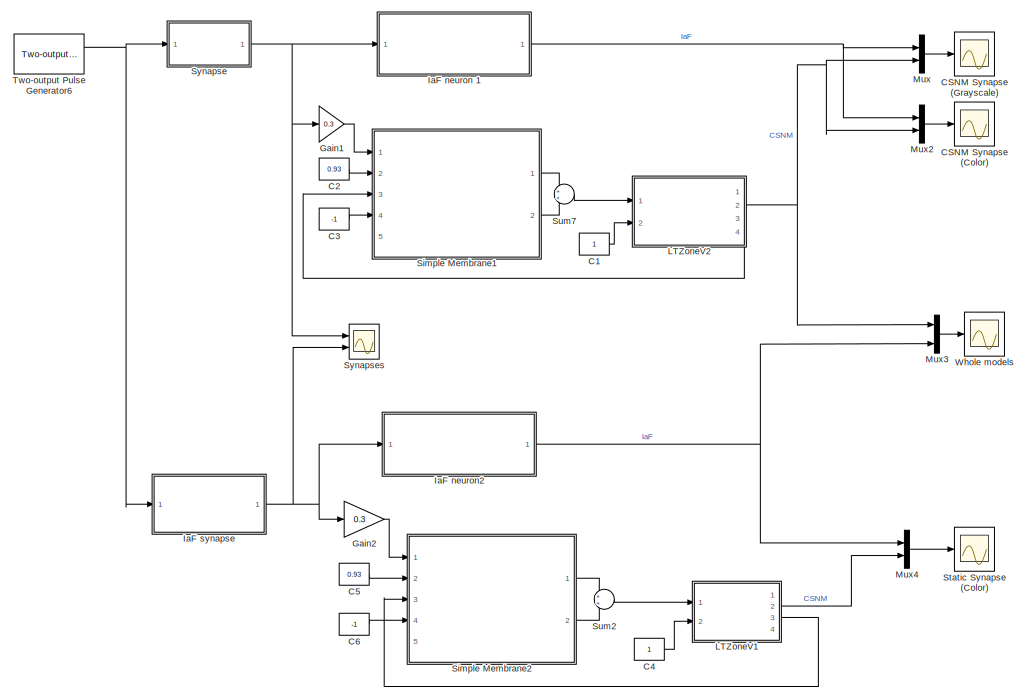
[diagram: root canvas - part 1/2, top right region]
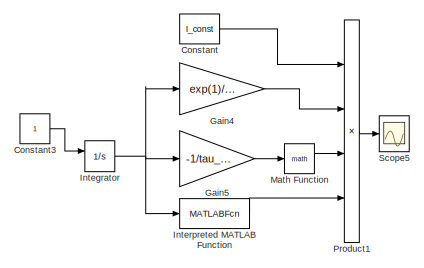
[diagram: root canvas - part 2/2, bottom left region]
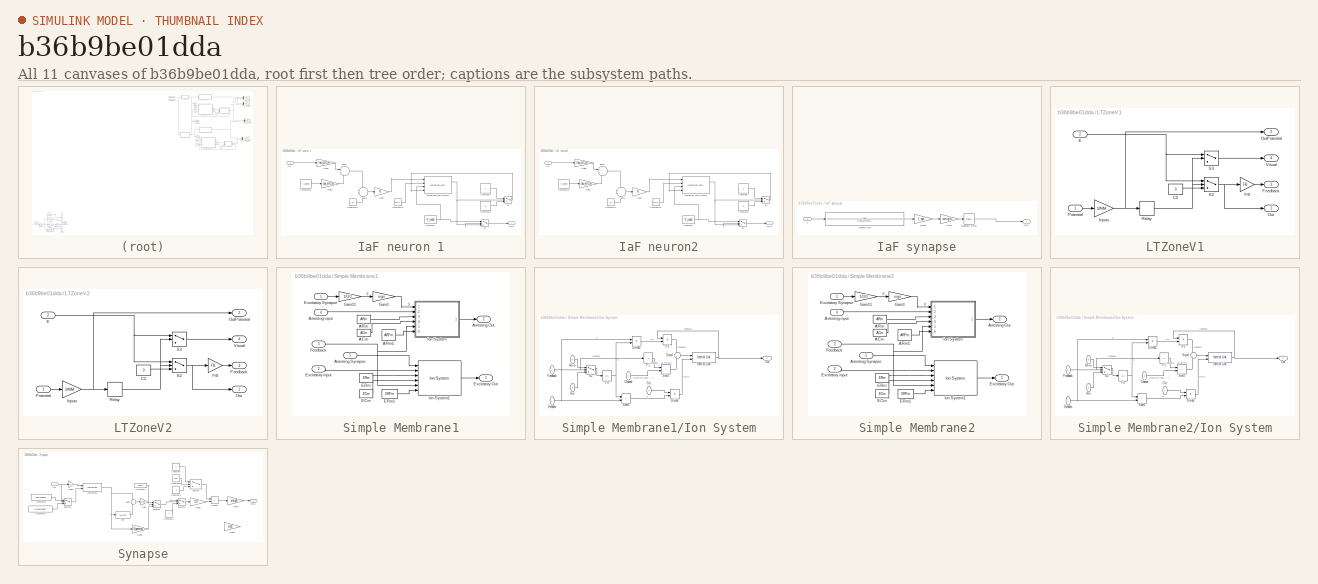
[diagram: thumbnail index - all 11 canvases of the model, root first then tree order]
MODEL slx_b36b9be01dda
KIND model
CONFIG AbsTol = auto
CONFIG EnableMultiTasking = on
CONFIG FixedStep = auto
CONFIG MaxStep = auto
CONFIG MinStep = auto
CONFIG RelTol = auto
CONFIG SampleTimeConstraint = Unconstrained
CONFIG SolverName = VariableStepAuto
CONFIG StartTime = 0.0
CONFIG StopTime = 0.4
BLOCK [Constant] C1
  NameLocation = top
BLOCK [Constant] C2
  Value = 0.93
BLOCK [Constant] C3
  Value = -1
BLOCK [Constant] C4
  NameLocation = top
BLOCK [Constant] C5
  Value = 0.93
BLOCK [Constant] C6
  Value = -1
BLOCK [Scope] CSNM Synapse (Color)
  Floating = off
  NumInputPorts = 1
  Ports = [1]
  ScopeSpecificationString = Simulink.scopes.TimeScopeBlockCfg('CurrentConfiguration', extmgr.ConfigurationSet(extmgr.Configuration('Core','General UI',true,'FigureColor',[1 1 1]),extmgr.Configuration('Core','Source UI',true),extmgr.Configuration('Sources','WiredSimulink',true,'DataLoggingVariableName','ScopeData2'),extmgr.Configuration('Visuals','Time Domain',true,'SerializedDisplays',{struct('MinYLimReal','-0.104','MaxYLimR...<+1925ch>
BLOCK [Scope] CSNM Synapse (Grayscale)
  Floating = off
  NumInputPorts = 1
  Ports = [1]
  ScopeSpecificationString = Simulink.scopes.TimeScopeBlockCfg('CurrentConfiguration', extmgr.ConfigurationSet(extmgr.Configuration('Core','General UI',true,'FigureColor',[1 1 1]),extmgr.Configuration('Core','Source UI',true),extmgr.Configuration('Sources','WiredSimulink',true,'DataLoggingVariableName','ScopeData1'),extmgr.Configuration('Visuals','Time Domain',true,'SerializedDisplays',{struct('MinYLimReal','-0.104','MaxYLimR...<+1903ch>
BLOCK [Constant] Constant
  Commented = on
  Value = I_const
BLOCK [Constant] Constant3
  Commented = on
BLOCK [Gain] Gain1
  Gain = 0.3
BLOCK [Gain] Gain2
  Gain = 0.3
BLOCK [Gain] Gain4
  Commented = on
  Gain = exp(1)/tau_syn
BLOCK [Gain] Gain5
  Commented = on
  Gain = -1/tau_syn
BLOCK [SubSystem] IaF neuron 1
  Ports = [1, 1]
  RequestExecContextInheritance = off
BLOCK [Constant] IaF neuron 1/Constant1
  Value = V_reset
BLOCK [Constant] IaF neuron 1/Constant10
  Value = tau_m
BLOCK [Constant] IaF neuron 1/Constant11
  Value = E_L
BLOCK [Constant] IaF neuron 1/Constant12
  Value = I_const
BLOCK [Constant] IaF neuron 1/Constant2
BLOCK [Constant] IaF neuron 1/Constant6
  Value = 0
BLOCK [Gain] IaF neuron 1/Gain1
BLOCK [Gain] IaF neuron 1/Gain2
  Gain = tau_m/Cm
BLOCK [Gain] IaF neuron 1/Gain3
  Gain = tau_m/Cm
BLOCK [Inport] IaF neuron 1/In1
BLOCK [Reference] IaF neuron 1/Inertial Link With Reset1  REF=NeuroModelerLibrary/Support/Inertial Link With Reset
  Ports = [4, 2]
  SourceBlock = NeuroModelerLibrary/Support/Inertial Link With Reset
  SourceType = SubSystem
BLOCK [Outport] IaF neuron 1/Out1
BLOCK [Switch] IaF neuron 1/S1
  Threshold = V_th
BLOCK [Switch] IaF neuron 1/S3
  Threshold = V_th
BLOCK [Sum] IaF neuron 1/Sum1
  Ports = [2, 1]
BLOCK [Sum] IaF neuron 1/Sum3
  Ports = [2, 1]
BLOCK [SubSystem] IaF neuron2
  Ports = [1, 1]
  RequestExecContextInheritance = off
BLOCK [Constant] IaF neuron2/Constant1
  Value = V_reset
BLOCK [Constant] IaF neuron2/Constant10
  Value = tau_m
BLOCK [Constant] IaF neuron2/Constant11
  Value = E_L
BLOCK [Constant] IaF neuron2/Constant12
  Value = I_const
BLOCK [Constant] IaF neuron2/Constant2
BLOCK [Constant] IaF neuron2/Constant6
  Value = 0
BLOCK [Gain] IaF neuron2/Gain1
BLOCK [Gain] IaF neuron2/Gain2
  Gain = tau_m/Cm
BLOCK [Gain] IaF neuron2/Gain3
  Gain = tau_m/Cm
BLOCK [Inport] IaF neuron2/In1
BLOCK [Reference] IaF neuron2/Inertial Link With Reset1  REF=NeuroModelerLibrary/Support/Inertial Link With Reset
  Ports = [4, 2]
  SourceBlock = NeuroModelerLibrary/Support/Inertial Link With Reset
  SourceType = SubSystem
BLOCK [Outport] IaF neuron2/Out1
BLOCK [Switch] IaF neuron2/S1
  Threshold = V_th
BLOCK [Switch] IaF neuron2/S3
  Threshold = V_th
BLOCK [Sum] IaF neuron2/Sum1
  Ports = [2, 1]
BLOCK [Sum] IaF neuron2/Sum3
  Ports = [2, 1]
BLOCK [SubSystem] IaF synapse
  Ports = [1, 1]
  RequestExecContextInheritance = off
BLOCK [Gain] IaF synapse/Gain
  Gain = weight
BLOCK [Gain] IaF synapse/Gain6
  Gain = I_syn
BLOCK [Outport] IaF synapse/Out1
BLOCK [TransferFcn] IaF synapse/Transfer Fcn
  Denominator = [(tau_syn*tau_syn)  (2*tau_syn)  1]
BLOCK [TransportDelay] IaF synapse/Transport Delay
  DelayTime = delay
  Ports = [1, 1]
BLOCK [Inport] IaF synapse/u
BLOCK [Integrator] Integrator
  Commented = on
  ExternalReset = falling
  Ports = [2, 1]
BLOCK [MATLABFcn] Interpreted MATLAB Function
  Commented = on
  MATLABFcn = heaviside(u)
  Output1D = off
  OutputSignalType = real
  Ports = [1, 1]
BLOCK [SubSystem] LTZoneV1
  Ports = [2, 4]
  RequestExecContextInheritance = off
BLOCK [Constant] LTZoneV1/C5
  Value = 0
BLOCK [Inport] LTZoneV1/E
  Port = 2
BLOCK [Gain] LTZoneV1/FB
  Gain = FB
  OutDataTypeStr = Inherit: Same as input
  ParamDataTypeStr = Inherit: Same as input
BLOCK [Outport] LTZoneV1/Feedback
  InitialOutput = 0
  Port = 3
  VectorParamsAs1DForOutWhenUnconnected = off
BLOCK [Gain] LTZoneV1/Inputs
  Gain = 1/NM
  OutDataTypeStr = Inherit: Same as input
  ParamDataTypeStr = Inherit: Same as input
BLOCK [Outport] LTZoneV1/Out
  InitialOutput = 0
  VectorParamsAs1DForOutWhenUnconnected = off
BLOCK [Outport] LTZoneV1/OutPotential
  InitialOutput = 0
  Port = 2
  VectorParamsAs1DForOutWhenUnconnected = off
BLOCK [Inport] LTZoneV1/Potential
BLOCK [Relay] LTZoneV1/Relay
  OffSwitchValue = switchOff
  OnSwitchValue = T
BLOCK [Switch] LTZoneV1/S2
  Threshold = 1
BLOCK [Switch] LTZoneV1/S3
  Threshold = 1
BLOCK [Outport] LTZoneV1/Visual
  InitialOutput = 0
  Port = 4
  VectorParamsAs1DForOutWhenUnconnected = off
BLOCK [SubSystem] LTZoneV2
  Ports = [2, 4]
  RequestExecContextInheritance = off
BLOCK [Constant] LTZoneV2/C5
  Value = 0
BLOCK [Inport] LTZoneV2/E
  Port = 2
BLOCK [Gain] LTZoneV2/FB
  Gain = FB
  OutDataTypeStr = Inherit: Same as input
  ParamDataTypeStr = Inherit: Same as input
BLOCK [Outport] LTZoneV2/Feedback
  InitialOutput = 0
  Port = 3
  VectorParamsAs1DForOutWhenUnconnected = off
BLOCK [Gain] LTZoneV2/Inputs
  Gain = 1/NM
  OutDataTypeStr = Inherit: Same as input
  ParamDataTypeStr = Inherit: Same as input
BLOCK [Outport] LTZoneV2/Out
  InitialOutput = 0
  VectorParamsAs1DForOutWhenUnconnected = off
BLOCK [Outport] LTZoneV2/OutPotential
  InitialOutput = 0
  Port = 2
  VectorParamsAs1DForOutWhenUnconnected = off
BLOCK [Inport] LTZoneV2/Potential
BLOCK [Relay] LTZoneV2/Relay
  OffSwitchValue = switchOff
  OnSwitchValue = T
BLOCK [Switch] LTZoneV2/S2
  Threshold = 1
BLOCK [Switch] LTZoneV2/S3
  Threshold = 1
BLOCK [Outport] LTZoneV2/Visual
  InitialOutput = 0
  Port = 4
  VectorParamsAs1DForOutWhenUnconnected = off
BLOCK [Math] Math Function
  Commented = on
  Ports = [1, 1]
BLOCK [Mux] Mux
  DisplayOption = bar
  Inputs = 2
  Ports = [2, 1]
BLOCK [Mux] Mux2
  DisplayOption = bar
  Inputs = 2
  Ports = [2, 1]
BLOCK [Mux] Mux3
  DisplayOption = bar
  Inputs = 3
  Ports = [3, 1]
BLOCK [Mux] Mux4
  DisplayOption = bar
  Inputs = 2
  Ports = [2, 1]
BLOCK [Product] Product1
  Commented = on
  Inputs = 4
  Ports = [4, 1]
BLOCK [Scope] Scope5
  Commented = on
  Floating = off
  NumInputPorts = 1
  Ports = [1]
  ScopeSpecificationString = Simulink.scopes.TimeScopeBlockCfg('CurrentConfiguration', extmgr.ConfigurationSet(extmgr.Configuration('Core','General UI',true),extmgr.Configuration('Core','Source UI',true),extmgr.Configuration('Sources','WiredSimulink',true,'DataLoggingVariableName','ScopeData1'),extmgr.Configuration('Visuals','Time Domain',true,'SerializedDisplays',{struct('MinYLimReal','-1.00000','MaxYLimReal','1.00000','YLab...<+1465ch>
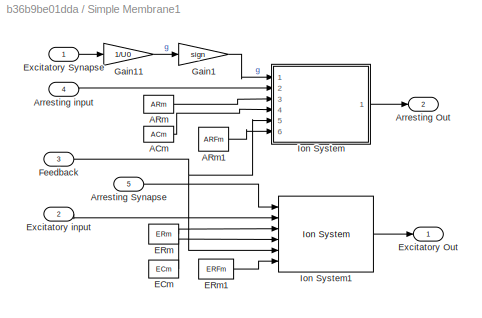
BLOCK [SubSystem] Simple Membrane1
  Ports = [5, 2]
  RequestExecContextInheritance = off
BLOCK [Constant] Simple Membrane1/ACm
  Value = ACm
BLOCK [Constant] Simple Membrane1/ARm
  Value = ARm
BLOCK [Constant] Simple Membrane1/ARm1
  Value = ARFm
BLOCK [Outport] Simple Membrane1/Arresting Out
  Port = 2
  VectorParamsAs1DForOutWhenUnconnected = off
BLOCK [Inport] Simple Membrane1/Arresting Synapse
  Port = 5
BLOCK [Inport] Simple Membrane1/Arresting input
  Port = 4
BLOCK [Constant] Simple Membrane1/ECm
  Value = ECm
BLOCK [Constant] Simple Membrane1/ERm
  Value = ERm
BLOCK [Constant] Simple Membrane1/ERm1
  Value = ERFm
BLOCK [Outport] Simple Membrane1/Excitatory Out
  VectorParamsAs1DForOutWhenUnconnected = off
BLOCK [Inport] Simple Membrane1/Excitatory Synapse
BLOCK [Inport] Simple Membrane1/Excitatory input
  Port = 2
BLOCK [Inport] Simple Membrane1/Feedback
  Port = 3
BLOCK [Gain] Simple Membrane1/Gain1
  Gain = sign
BLOCK [Gain] Simple Membrane1/Gain11
  Gain = 1/U0
BLOCK [SubSystem] Simple Membrane1/Ion System
  AncestorBlock = NeuroModelerLibrary/Neuron Elements/Ion System
  Ports = [6, 1]
  RequestExecContextInheritance = off
BLOCK [Inport] Simple Membrane1/Ion System/Channel
  NameLocation = top
  Port = 2
BLOCK [Inport] Simple Membrane1/Ion System/Cm
  NameLocation = top
  Port = 4
BLOCK [Product] Simple Membrane1/Ion System/Divide
  Inputs = */
  Ports = [2, 1]
BLOCK [Product] Simple Membrane1/Ion System/Divide1
  Inputs = */
  Ports = [2, 1]
BLOCK [Fcn] Simple Membrane1/Ion System/F1
  Expr = -u
BLOCK [Fcn] Simple Membrane1/Ion System/F4
  Expr = 1/u
BLOCK [Inport] Simple Membrane1/Ion System/Feedback
  NameLocation = top
  Port = 5
BLOCK [Reference] Simple Membrane1/Ion System/Inertial Link  REF=NeuroModelerLibrary/Support/Inertial Link
  Ports = [2, 1]
  SourceBlock = NeuroModelerLibrary/Support/Inertial Link
  SourceType = SubSystem
BLOCK [Outport] Simple Membrane1/Ion System/Out
  VectorParamsAs1DForOutWhenUnconnected = off
BLOCK [Product] Simple Membrane1/Ion System/P1
  InputSameDT = on
  OutDataTypeStr = Inherit: Same as first input
  Ports = [2, 1]
  RndMeth = Zero
  SaturateOnIntegerOverflow = on
BLOCK [Inport] Simple Membrane1/Ion System/RFm
  NameLocation = top
  Port = 6
BLOCK [Inport] Simple Membrane1/Ion System/Rm
  NameLocation = top
  Port = 3
BLOCK [Switch] Simple Membrane1/Ion System/S2
  Criteria = u2 > Threshold
BLOCK [Sum] Simple Membrane1/Ion System/Sum2
  IconShape = rectangular
  InputSameDT = on
  OutDataTypeStr = Inherit: Same as first input
  Ports = [2, 1]
  SaturateOnIntegerOverflow = on
BLOCK [Sum] Simple Membrane1/Ion System/Sum4
  InputSameDT = on
  Inputs = -+
  OutDataTypeStr = Inherit: Same as first input
  Ports = [2, 1]
  SaturateOnIntegerOverflow = on
BLOCK [Sum] Simple Membrane1/Ion System/Sum5
  IconShape = rectangular
  InputSameDT = on
  OutDataTypeStr = Inherit: Same as first input
  Ports = [2, 1]
  SaturateOnIntegerOverflow = on
BLOCK [Inport] Simple Membrane1/Ion System/Synapse
  NameLocation = top
BLOCK [Reference] Simple Membrane1/Ion System1  REF=NeuroModelerLibrary/Neuron Elements/Ion System
  Ports = [6, 1]
  SourceBlock = NeuroModelerLibrary/Neuron Elements/Ion System
  SourceType = SubSystem
BLOCK [SubSystem] Simple Membrane2
  Ports = [5, 2]
  RequestExecContextInheritance = off
BLOCK [Constant] Simple Membrane2/ACm
  Value = ACm
BLOCK [Constant] Simple Membrane2/ARm
  Value = ARm
BLOCK [Constant] Simple Membrane2/ARm1
  Value = ARFm
BLOCK [Outport] Simple Membrane2/Arresting Out
  Port = 2
  VectorParamsAs1DForOutWhenUnconnected = off
BLOCK [Inport] Simple Membrane2/Arresting Synapse
  Port = 5
BLOCK [Inport] Simple Membrane2/Arresting input
  Port = 4
BLOCK [Constant] Simple Membrane2/ECm
  Value = ECm
BLOCK [Constant] Simple Membrane2/ERm
  Value = ERm
BLOCK [Constant] Simple Membrane2/ERm1
  Value = ERFm
BLOCK [Outport] Simple Membrane2/Excitatory Out
  VectorParamsAs1DForOutWhenUnconnected = off
BLOCK [Inport] Simple Membrane2/Excitatory Synapse
BLOCK [Inport] Simple Membrane2/Excitatory input
  Port = 2
BLOCK [Inport] Simple Membrane2/Feedback
  Port = 3
BLOCK [Gain] Simple Membrane2/Gain1
  Gain = sign
BLOCK [Gain] Simple Membrane2/Gain11
  Gain = 1/U0
BLOCK [SubSystem] Simple Membrane2/Ion System
  AncestorBlock = NeuroModelerLibrary/Neuron Elements/Ion System
  Ports = [6, 1]
  RequestExecContextInheritance = off
BLOCK [Inport] Simple Membrane2/Ion System/Channel
  NameLocation = top
  Port = 2
BLOCK [Inport] Simple Membrane2/Ion System/Cm
  NameLocation = top
  Port = 4
BLOCK [Product] Simple Membrane2/Ion System/Divide
  Inputs = */
  Ports = [2, 1]
BLOCK [Product] Simple Membrane2/Ion System/Divide1
  Inputs = */
  Ports = [2, 1]
BLOCK [Fcn] Simple Membrane2/Ion System/F1
  Expr = -u
BLOCK [Fcn] Simple Membrane2/Ion System/F4
  Expr = 1/u
BLOCK [Inport] Simple Membrane2/Ion System/Feedback
  NameLocation = top
  Port = 5
BLOCK [Reference] Simple Membrane2/Ion System/Inertial Link  REF=NeuroModelerLibrary/Support/Inertial Link
  Ports = [2, 1]
  SourceBlock = NeuroModelerLibrary/Support/Inertial Link
  SourceType = SubSystem
BLOCK [Outport] Simple Membrane2/Ion System/Out
  VectorParamsAs1DForOutWhenUnconnected = off
BLOCK [Product] Simple Membrane2/Ion System/P1
  InputSameDT = on
  OutDataTypeStr = Inherit: Same as first input
  Ports = [2, 1]
  RndMeth = Zero
  SaturateOnIntegerOverflow = on
BLOCK [Inport] Simple Membrane2/Ion System/RFm
  NameLocation = top
  Port = 6
BLOCK [Inport] Simple Membrane2/Ion System/Rm
  NameLocation = top
  Port = 3
BLOCK [Switch] Simple Membrane2/Ion System/S2
  Criteria = u2 > Threshold
BLOCK [Sum] Simple Membrane2/Ion System/Sum2
  IconShape = rectangular
  InputSameDT = on
  OutDataTypeStr = Inherit: Same as first input
  Ports = [2, 1]
  SaturateOnIntegerOverflow = on
BLOCK [Sum] Simple Membrane2/Ion System/Sum4
  InputSameDT = on
  Inputs = -+
  OutDataTypeStr = Inherit: Same as first input
  Ports = [2, 1]
  SaturateOnIntegerOverflow = on
BLOCK [Sum] Simple Membrane2/Ion System/Sum5
  IconShape = rectangular
  InputSameDT = on
  OutDataTypeStr = Inherit: Same as first input
  Ports = [2, 1]
  SaturateOnIntegerOverflow = on
BLOCK [Inport] Simple Membrane2/Ion System/Synapse
  NameLocation = top
BLOCK [Reference] Simple Membrane2/Ion System1  REF=NeuroModelerLibrary/Neuron Elements/Ion System
  Ports = [6, 1]
  SourceBlock = NeuroModelerLibrary/Neuron Elements/Ion System
  SourceType = SubSystem
BLOCK [Scope] Static Synapse (Color)
  Floating = off
  NumInputPorts = 1
  Ports = [1]
  ScopeSpecificationString = Simulink.scopes.TimeScopeBlockCfg('CurrentConfiguration', extmgr.ConfigurationSet(extmgr.Configuration('Core','General UI',true,'FigureColor',[1 1 1]),extmgr.Configuration('Core','Source UI',true),extmgr.Configuration('Sources','WiredSimulink',true,'DataLoggingVariableName','ScopeData1'),extmgr.Configuration('Visuals','Time Domain',true,'SerializedDisplays',{struct('MinYLimReal','-0.104','MaxYLimR...<+1925ch>
BLOCK [Sum] Sum2
  InputSameDT = on
  OutDataTypeStr = Inherit: Same as first input
  Ports = [2, 1]
  SaturateOnIntegerOverflow = on
BLOCK [Sum] Sum7
  InputSameDT = on
  OutDataTypeStr = Inherit: Same as first input
  Ports = [2, 1]
  SaturateOnIntegerOverflow = on
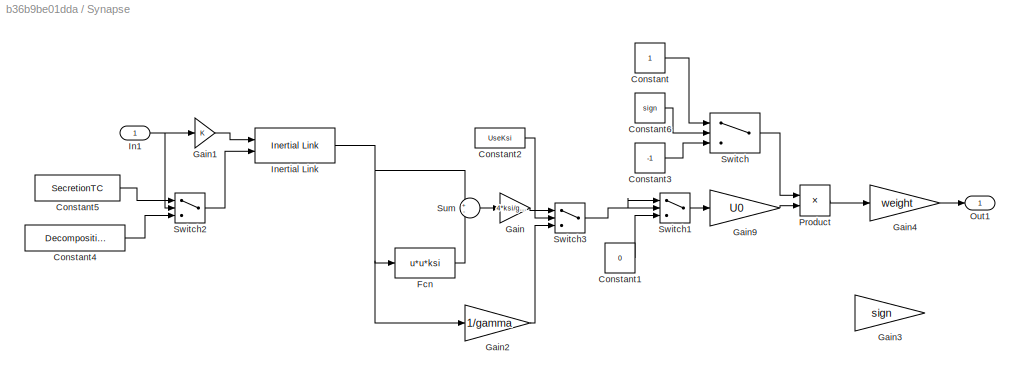
BLOCK [SubSystem] Synapse
  Ports = [1, 1]
  RequestExecContextInheritance = off
BLOCK [Constant] Synapse/Constant
BLOCK [Constant] Synapse/Constant1
  Value = 0
BLOCK [Constant] Synapse/Constant2
  Value = UseKsi
BLOCK [Constant] Synapse/Constant3
  Value = -1
BLOCK [Constant] Synapse/Constant4
  Value = DecompositionTC
BLOCK [Constant] Synapse/Constant5
  Value = SecretionTC
BLOCK [Constant] Synapse/Constant6
  Value = sign
BLOCK [Fcn] Synapse/Fcn
  Expr = u*u*ksi
BLOCK [Gain] Synapse/Gain
  Gain = 4*ksi/gamma
  OutDataTypeStr = Inherit: Same as input
  ParamDataTypeStr = Inherit: Same as input
  SaturateOnIntegerOverflow = on
BLOCK [Gain] Synapse/Gain1
  OutDataTypeStr = Inherit: Same as input
  ParamDataTypeStr = Inherit: Same as input
  SaturateOnIntegerOverflow = on
BLOCK [Gain] Synapse/Gain2
  Gain = 1/gamma
  OutDataTypeStr = Inherit: Same as input
  ParamDataTypeStr = Inherit: Same as input
  SaturateOnIntegerOverflow = on
BLOCK [Gain] Synapse/Gain3
  Commented = on
  Gain = sign
BLOCK [Gain] Synapse/Gain4
  Gain = weight
BLOCK [Gain] Synapse/Gain9
  Gain = U0
BLOCK [Inport] Synapse/In1
BLOCK [Reference] Synapse/Inertial Link  REF=NeuroModelerLibrary/Support/Inertial Link
  Ports = [2, 1]
  SourceBlock = NeuroModelerLibrary/Support/Inertial Link
  SourceType = SubSystem
BLOCK [Outport] Synapse/Out1
  VectorParamsAs1DForOutWhenUnconnected = off
BLOCK [Product] Synapse/Product
  Ports = [2, 1]
BLOCK [Sum] Synapse/Sum
  Inputs = +-
  Ports = [2, 1]
  SaturateOnIntegerOverflow = on
BLOCK [Switch] Synapse/Switch
  InputSameDT = off
  SaturateOnIntegerOverflow = off
  Threshold = 1
BLOCK [Switch] Synapse/Switch1
  InputSameDT = off
  SaturateOnIntegerOverflow = off
BLOCK [Switch] Synapse/Switch2
  InputSameDT = off
  SaturateOnIntegerOverflow = off
  Threshold = 1
BLOCK [Switch] Synapse/Switch3
  InputSameDT = off
  SaturateOnIntegerOverflow = off
  Threshold = 1
BLOCK [Scope] Synapses
  Floating = off
  NumInputPorts = 2
  Ports = [2]
  ScopeSpecificationString = Simulink.scopes.TimeScopeBlockCfg('CurrentConfiguration', extmgr.ConfigurationSet(extmgr.Configuration('Core','General UI',true),extmgr.Configuration('Core','Source UI',true),extmgr.Configuration('Sources','WiredSimulink',true,'DataLoggingVariableName','ScopeData1'),extmgr.Configuration('Visuals','Time Domain',true,'SerializedDisplays',{struct('MinYLimReal','-0.000000003','MaxYLimReal','0.00000002...<+1484ch>
BLOCK [Reference] Two-output Pulse Generator6  REF=NeuroModelerLibrary/Support/Two-output
Pulse Generator
  Ports = [0, 2]
  SourceBlock = NeuroModelerLibrary/Support/Two-output\nPulse Generator
BLOCK [Scope] Whole models
  Floating = off
  NumInputPorts = 1
  Ports = [1]
  ScopeSpecificationString = Simulink.scopes.TimeScopeBlockCfg('CurrentConfiguration', extmgr.ConfigurationSet(extmgr.Configuration('Core','General UI',true,'FigureColor',[1 1 1]),extmgr.Configuration('Core','Source UI',true),extmgr.Configuration('Sources','WiredSimulink',true,'DataLoggingVariableName','ScopeData1'),extmgr.Configuration('Visuals','Time Domain',true,'SerializedDisplays',{struct('MinYLimReal','-0.104','MaxYLimR...<+1897ch>
LINE C1:1 -> LTZoneV2:2
LINE C2:1 -> Simple Membrane1:2
LINE C3:1 -> Simple Membrane1:4
LINE C4:1 -> LTZoneV1:2
LINE C5:1 -> Simple Membrane2:2
LINE C6:1 -> Simple Membrane2:4
LINE Constant3:1 -> Integrator:1
LINE Constant:1 -> Product1:1
LINE Gain1:1 -> Simple Membrane1:1
LINE Gain2:1 -> Simple Membrane2:1
LINE Gain4:1 -> Product1:2
LINE Gain5:1 -> Math Function:1
LINE IaF neuron 1/Constant10:1 -> IaF neuron 1/Inertial Link With Reset1:2
LINE IaF neuron 1/Constant11:1 -> IaF neuron 1/Sum3:2
LINE IaF neuron 1/Constant12:1 -> IaF neuron 1/Gain2:1
NET IaF neuron 1/Constant1:1 -> IaF neuron 1/Inertial Link With Reset1:3, IaF neuron 1/S3:1
LINE IaF neuron 1/Constant2:1 -> IaF neuron 1/S1:1
LINE IaF neuron 1/Constant6:1 -> IaF neuron 1/S1:3
LINE IaF neuron 1/Gain1:1 -> IaF neuron 1/Inertial Link With Reset1:1
LINE IaF neuron 1/Gain2:1 -> IaF neuron 1/Sum1:2
LINE IaF neuron 1/Gain3:1 -> IaF neuron 1/Sum1:1
LINE IaF neuron 1/In1:1 -> IaF neuron 1/Gain3:1
NET IaF neuron 1/Inertial Link With Reset1:1 -> IaF neuron 1/S1:2, IaF neuron 1/S3:2, IaF neuron 1/S3:3
LINE IaF neuron 1/S1:1 -> IaF neuron 1/Inertial Link With Reset1:4
LINE IaF neuron 1/S3:1 -> IaF neuron 1/Out1:1
LINE IaF neuron 1/Sum1:1 -> IaF neuron 1/Sum3:1
LINE IaF neuron 1/Sum3:1 -> IaF neuron 1/Gain1:1
NET IaF neuron 1:1 -> Mux2:1, Mux:1
LINE IaF neuron2/Constant10:1 -> IaF neuron2/Inertial Link With Reset1:2
LINE IaF neuron2/Constant11:1 -> IaF neuron2/Sum3:2
LINE IaF neuron2/Constant12:1 -> IaF neuron2/Gain2:1
NET IaF neuron2/Constant1:1 -> IaF neuron2/Inertial Link With Reset1:3, IaF neuron2/S3:1
LINE IaF neuron2/Constant2:1 -> IaF neuron2/S1:1
LINE IaF neuron2/Constant6:1 -> IaF neuron2/S1:3
LINE IaF neuron2/Gain1:1 -> IaF neuron2/Inertial Link With Reset1:1
LINE IaF neuron2/Gain2:1 -> IaF neuron2/Sum1:2
LINE IaF neuron2/Gain3:1 -> IaF neuron2/Sum1:1
LINE IaF neuron2/In1:1 -> IaF neuron2/Gain3:1
NET IaF neuron2/Inertial Link With Reset1:1 -> IaF neuron2/S1:2, IaF neuron2/S3:2, IaF neuron2/S3:3
LINE IaF neuron2/S1:1 -> IaF neuron2/Inertial Link With Reset1:4
LINE IaF neuron2/S3:1 -> IaF neuron2/Out1:1
LINE IaF neuron2/Sum1:1 -> IaF neuron2/Sum3:1
LINE IaF neuron2/Sum3:1 -> IaF neuron2/Gain1:1
NET IaF neuron2:1 -> Mux3:3, Mux4:1
LINE IaF synapse/Gain6:1 -> IaF synapse/Gain:1
LINE IaF synapse/Gain:1 -> IaF synapse/Transport Delay:1
LINE IaF synapse/Transfer Fcn:1 -> IaF synapse/Gain6:1
LINE IaF synapse/Transport Delay:1 -> IaF synapse/Out1:1
LINE IaF synapse/u:1 -> IaF synapse/Transfer Fcn:1
NET IaF synapse:1 -> Gain2:1, IaF neuron2:1, Synapses:2
NET Integrator:1 -> Gain4:1, Gain5:1, Interpreted MATLAB Function:1
LINE Interpreted MATLAB Function:1 -> Product1:4
LINE LTZoneV1/C5:1 -> LTZoneV1/S2:3
NET LTZoneV1/E:1 -> LTZoneV1/S2:1, LTZoneV1/S3:1
LINE LTZoneV1/FB:1 -> LTZoneV1/Feedback:1
NET LTZoneV1/Inputs:1 -> LTZoneV1/OutPotential:1, LTZoneV1/Relay:1
LINE LTZoneV1/Potential:1 -> LTZoneV1/Inputs:1
NET LTZoneV1/Relay:1 -> LTZoneV1/S2:2, LTZoneV1/S3:2
NET LTZoneV1/S2:1 -> LTZoneV1/FB:1, LTZoneV1/Out:1
LINE LTZoneV1/S3:1 -> LTZoneV1/Visual:1
LINE LTZoneV1:2 -> Mux4:2
LINE LTZoneV1:3 -> Simple Membrane2:3
LINE LTZoneV2/C5:1 -> LTZoneV2/S2:3
NET LTZoneV2/E:1 -> LTZoneV2/S2:1, LTZoneV2/S3:1
LINE LTZoneV2/FB:1 -> LTZoneV2/Feedback:1
NET LTZoneV2/Inputs:1 -> LTZoneV2/OutPotential:1, LTZoneV2/Relay:1
LINE LTZoneV2/Potential:1 -> LTZoneV2/Inputs:1
NET LTZoneV2/Relay:1 -> LTZoneV2/S2:2, LTZoneV2/S3:2
NET LTZoneV2/S2:1 -> LTZoneV2/FB:1, LTZoneV2/Out:1
LINE LTZoneV2/S3:1 -> LTZoneV2/Visual:1
NET LTZoneV2:2 -> Mux2:2, Mux3:1, Mux:2
LINE LTZoneV2:3 -> Simple Membrane1:3
LINE Math Function:1 -> Product1:3
LINE Mux2:1 -> CSNM Synapse (Color):1
LINE Mux3:1 -> Whole models:1
LINE Mux4:1 -> Static Synapse (Color):1
LINE Mux:1 -> CSNM Synapse (Grayscale):1
LINE Product1:1 -> Scope5:1
LINE Simple Membrane1/ACm:1 -> Simple Membrane1/Ion System:4
LINE Simple Membrane1/ARm1:1 -> Simple Membrane1/Ion System:6
LINE Simple Membrane1/ARm:1 -> Simple Membrane1/Ion System:3
LINE Simple Membrane1/Arresting Synapse:1 -> Simple Membrane1/Ion System1:1
LINE Simple Membrane1/Arresting input:1 -> Simple Membrane1/Ion System:2
LINE Simple Membrane1/ECm:1 -> Simple Membrane1/Ion System1:4
LINE Simple Membrane1/ERm1:1 -> Simple Membrane1/Ion System1:6
LINE Simple Membrane1/ERm:1 -> Simple Membrane1/Ion System1:3
LINE Simple Membrane1/Excitatory Synapse:1 -> Simple Membrane1/Gain11:1
LINE Simple Membrane1/Excitatory input:1 -> Simple Membrane1/Ion System1:2
NET Simple Membrane1/Feedback:1 -> Simple Membrane1/Ion System1:5, Simple Membrane1/Ion System:5
LINE Simple Membrane1/Gain11:1 -> Simple Membrane1/Gain1:1
LINE Simple Membrane1/Gain1:1 -> Simple Membrane1/Ion System:1
LINE Simple Membrane1/Ion System1:1 -> Simple Membrane1/Excitatory Out:1
LINE Simple Membrane1/Ion System:1 -> Simple Membrane1/Arresting Out:1
LINE Simple Membrane1:1 -> Sum7:1
LINE Simple Membrane1:2 -> Sum7:2
LINE Simple Membrane2/ACm:1 -> Simple Membrane2/Ion System:4
LINE Simple Membrane2/ARm1:1 -> Simple Membrane2/Ion System:6
LINE Simple Membrane2/ARm:1 -> Simple Membrane2/Ion System:3
LINE Simple Membrane2/Arresting Synapse:1 -> Simple Membrane2/Ion System1:1
LINE Simple Membrane2/Arresting input:1 -> Simple Membrane2/Ion System:2
LINE Simple Membrane2/ECm:1 -> Simple Membrane2/Ion System1:4
LINE Simple Membrane2/ERm1:1 -> Simple Membrane2/Ion System1:6
LINE Simple Membrane2/ERm:1 -> Simple Membrane2/Ion System1:3
LINE Simple Membrane2/Excitatory Synapse:1 -> Simple Membrane2/Gain11:1
LINE Simple Membrane2/Excitatory input:1 -> Simple Membrane2/Ion System1:2
NET Simple Membrane2/Feedback:1 -> Simple Membrane2/Ion System1:5, Simple Membrane2/Ion System:5
LINE Simple Membrane2/Gain11:1 -> Simple Membrane2/Gain1:1
LINE Simple Membrane2/Gain1:1 -> Simple Membrane2/Ion System:1
LINE Simple Membrane2/Ion System1:1 -> Simple Membrane2/Excitatory Out:1
LINE Simple Membrane2/Ion System:1 -> Simple Membrane2/Arresting Out:1
LINE Simple Membrane2:1 -> Sum2:1
LINE Simple Membrane2:2 -> Sum2:2
LINE Sum2:1 -> LTZoneV1:1
LINE Sum7:1 -> LTZoneV2:1
LINE Synapse/Constant1:1 -> Synapse/Switch1:3
LINE Synapse/Constant2:1 -> Synapse/Switch3:2
LINE Synapse/Constant3:1 -> Synapse/Switch:3
LINE Synapse/Constant4:1 -> Synapse/Switch2:3
LINE Synapse/Constant5:1 -> Synapse/Switch2:1
LINE Synapse/Constant6:1 -> Synapse/Switch:2
LINE Synapse/Constant:1 -> Synapse/Switch:1
LINE Synapse/Fcn:1 -> Synapse/Sum:2
LINE Synapse/Gain1:1 -> Synapse/Inertial Link:1
LINE Synapse/Gain2:1 -> Synapse/Switch3:3
LINE Synapse/Gain4:1 -> Synapse/Out1:1
LINE Synapse/Gain9:1 -> Synapse/Product:2
LINE Synapse/Gain:1 -> Synapse/Switch3:1
NET Synapse/In1:1 -> Synapse/Gain1:1, Synapse/Switch2:2
NET Synapse/Inertial Link:1 -> Synapse/Fcn:1, Synapse/Gain2:1, Synapse/Sum:1
LINE Synapse/Product:1 -> Synapse/Gain4:1
LINE Synapse/Sum:1 -> Synapse/Gain:1
LINE Synapse/Switch1:1 -> Synapse/Gain9:1
LINE Synapse/Switch2:1 -> Synapse/Inertial Link:2
NET Synapse/Switch3:1 -> Synapse/Switch1:1, Synapse/Switch1:2
LINE Synapse/Switch:1 -> Synapse/Product:1
NET Synapse:1 -> Gain1:1, IaF neuron 1:1, Synapses:1
NET Two-output Pulse Generator6:1 -> IaF synapse:1, Synapse:1
note: NET lines group one-source signal fan-out (src -> all destinations, sorted); 1:1 wires keep LINE
